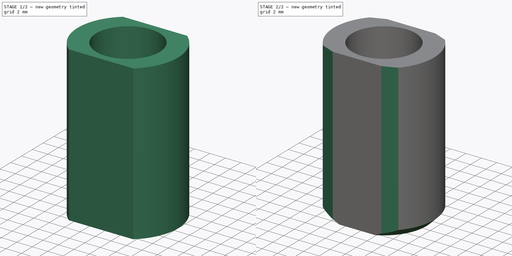
[diagram: build sequence overview — one tinted view per stage of 2, left to right]
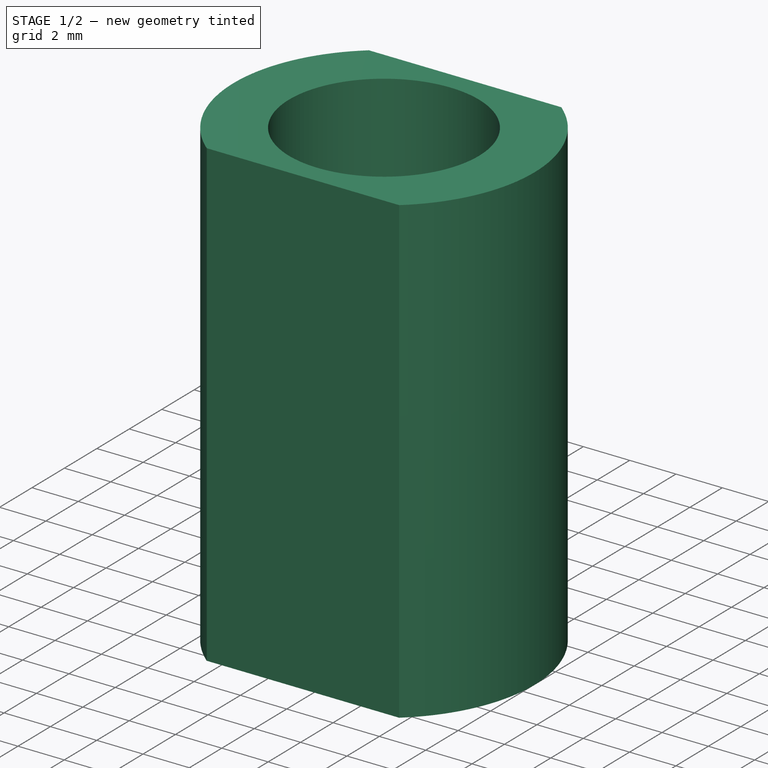
[diagram: stage 1 of 2 — iso view after this stage's code; geometry added in this stage tinted green]
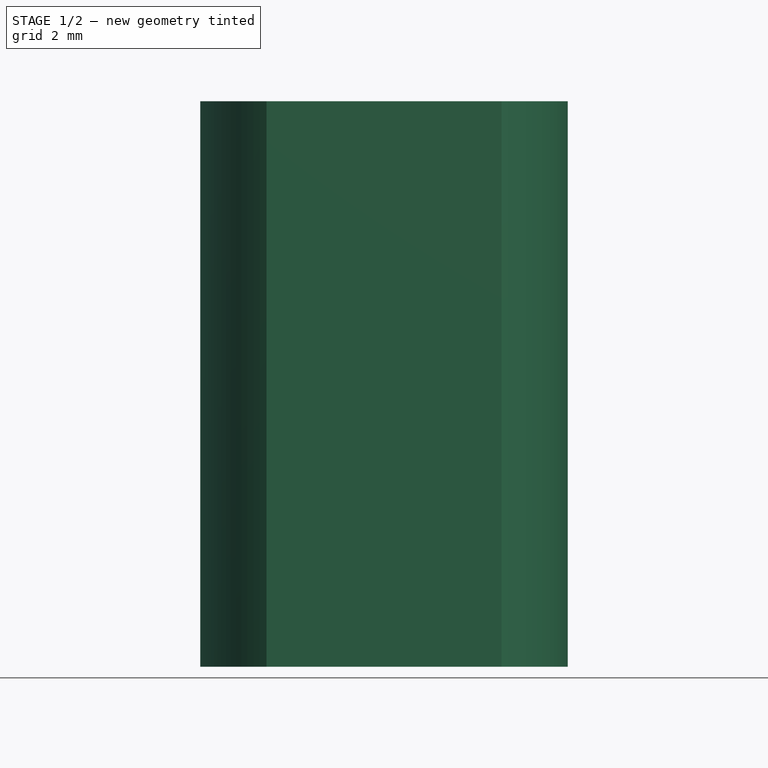
[diagram: stage 1 of 2 — front view after this stage's code; geometry added in this stage tinted green]
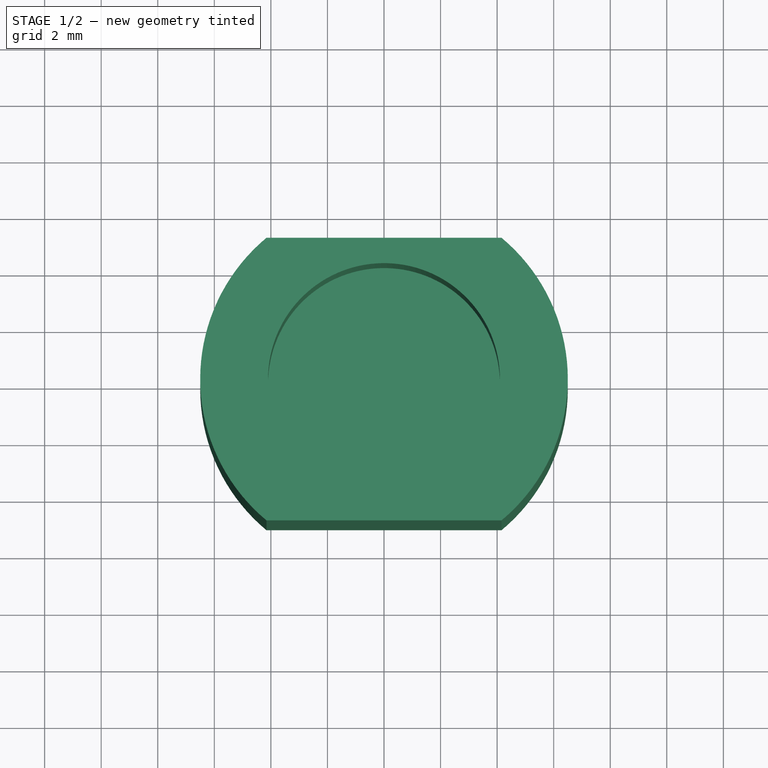
[diagram: stage 1 of 2 — top view after this stage's code; geometry added in this stage tinted green]
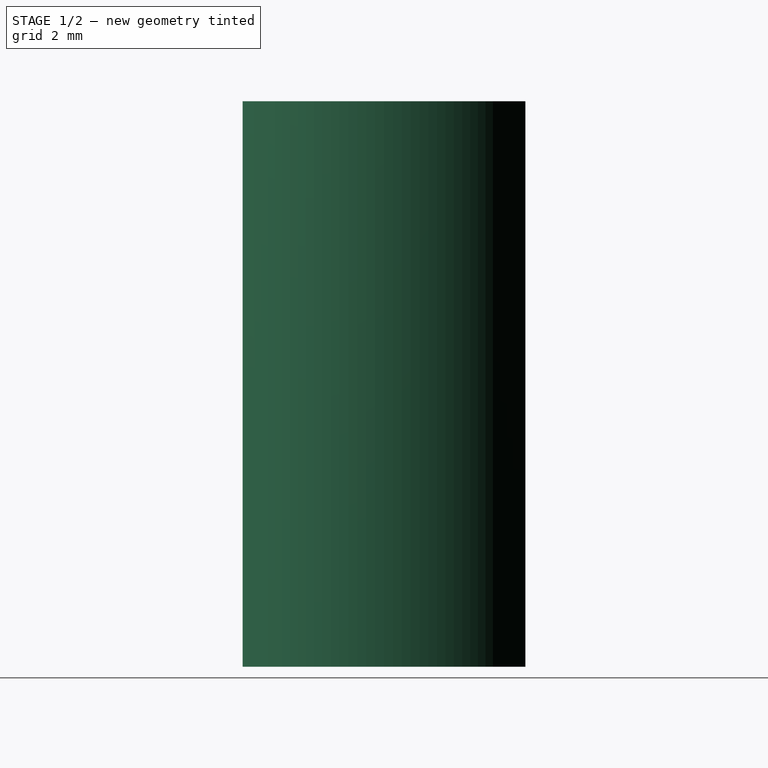
[diagram: stage 1 of 2 — right view after this stage's code; geometry added in this stage tinted green]
FCSTD DOCUMENT  (FreeCAD 1.0R38641 +468 (Git))
Label: 00forearm_tip
License: All rights reserved
LicenseURL: https://en.wikipedia.org/wiki/All_rights_reserved
objects: Sketcher::SketchObject×3, PartDesign::Pad×1, PartDesign::Pocket×1, PartDesign::Chamfer×1, PartDesign::Hole×1, PartDesign::Body×1
note: 19 computed .brp shape members not serialized (recipe doc carries the construction recipe); baked Part::Feature solids carry a one-line shape summary decoded from their .brp

FEATURE [Sketcher::SketchObject] Sketch
  ArcFitTolerance = 1e-06
  AttachmentSupport = -> [XY_Plane]
  FullyConstrained = false
  MakeInternals = false
  MapMode = 5
  sketch-geometry (10):
    g0: Circle [constr] CenterX=0 CenterY=0 CenterZ=0 NormalX=0 NormalY=0 NormalZ=1 AngleXU=0 Radius=6.5
    g1: LineSegment [constr] StartX=6.5816 StartY=-5 StartZ=0 EndX=6.5816 EndY=5 EndZ=0
    g2: LineSegment [constr] StartX=6.5816 StartY=5 StartZ=0 EndX=-6.5816 EndY=5 EndZ=0
    g3: LineSegment [constr] StartX=-6.5816 StartY=5 StartZ=0 EndX=-6.5816 EndY=-5 EndZ=0
    g4: LineSegment [constr] StartX=-6.5816 StartY=-5 StartZ=0 EndX=6.5816 EndY=-5 EndZ=0
    g5: GeomPoint [constr] X=0 Y=0 Z=0
    g6: ArcOfCircle CenterX=0 CenterY=0 CenterZ=0 NormalX=0 NormalY=0 NormalZ=1 AngleXU=0 Radius=6.5 StartAngle=5.40555 EndAngle=7.16082
    g7: ArcOfCircle CenterX=0 CenterY=0 CenterZ=0 NormalX=0 NormalY=0 NormalZ=1 AngleXU=0 Radius=6.5 StartAngle=2.26396 EndAngle=4.01923
    g8: LineSegment StartX=-4.15331 StartY=5 StartZ=0 EndX=4.15331 EndY=5 EndZ=0
    g9: LineSegment StartX=4.15331 StartY=-5 StartZ=0 EndX=-4.15331 EndY=-5 EndZ=0
  constraints (25):
    c: Coincident(g0,g-1)
    c: Diameter(g0) = 13
    c: Coincident(g1,g2)
    c: Coincident(g2,g3)
    c: Coincident(g3,g4)
    c: Coincident(g4,g1)
    c: Vertical(g1)
    c: Vertical(g3)
    c: Horizontal(g2)
    c: Horizontal(g4)
    c: Symmetric(g3,g1,g5)
    c: Coincident(g5,g0)
    c: DistanceY(g1,g1) = 10
    c: Coincident(g6,g0)
    c: PointOnObject(g6,g0)
    c: Coincident(g7,g0)
    c: PointOnObject(g7,g0)
    c: PointOnObject(g6,g2)
    c: PointOnObject(g7,g2)
    c: PointOnObject(g7,g4)
    c: PointOnObject(g6,g4)
    c: Coincident(g8,g7)
    c: Coincident(g8,g6)
    c: Coincident(g9,g6)
    c: Coincident(g9,g7)
FEATURE [PartDesign::Pad] Pad
  Direction = (0,0,1)
  Length = 20
  Length2 = 10
  Profile = -> Sketch
  ReferenceAxis = -> Sketch [N_Axis]
  Refine = true
  Suppressed = false
  Type = 0
FEATURE [Sketcher::SketchObject] Sketch001
  ArcFitTolerance = 1e-06
  FullyConstrained = true
  MakeInternals = false
  MapMode = 5
  Placement = pos=(0,0,20) rot=(0,0,1;0rad)
  sketch-geometry (1):
    g0: Circle CenterX=0 CenterY=0 CenterZ=0 NormalX=0 NormalY=0 NormalZ=1 AngleXU=0 Radius=4.1
  constraints (2):
    c: Coincident(g0,g-1)
    c: Diameter(g0) = 8.2
FEATURE [PartDesign::Pocket] Pocket
  BaseFeature = -> Pad
  Direction = (0,0,-1)
  Length = 10
  Length2 = 5
  Profile = -> Sketch001
  ReferenceAxis = -> Sketch001 [N_Axis]
  Refine = true
  Suppressed = false
  Type = 0
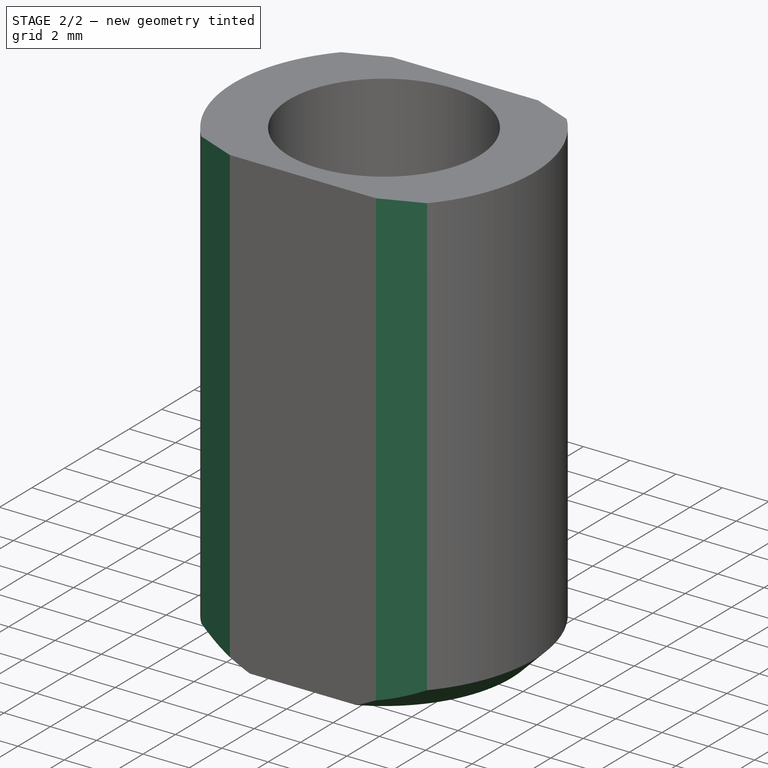
[diagram: stage 2 of 2 — iso view after this stage's code; geometry added in this stage tinted green]
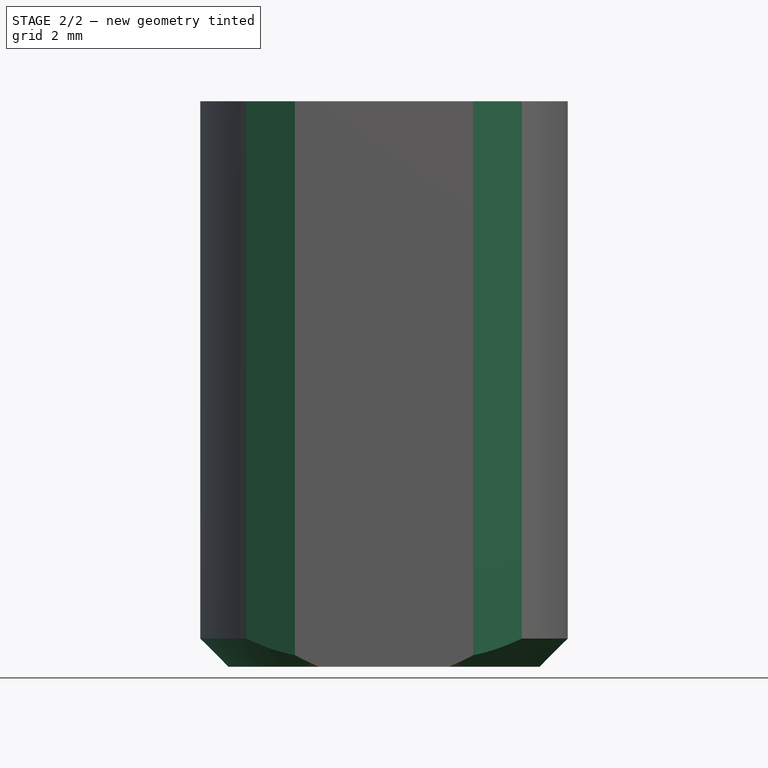
[diagram: stage 2 of 2 — front view after this stage's code; geometry added in this stage tinted green]
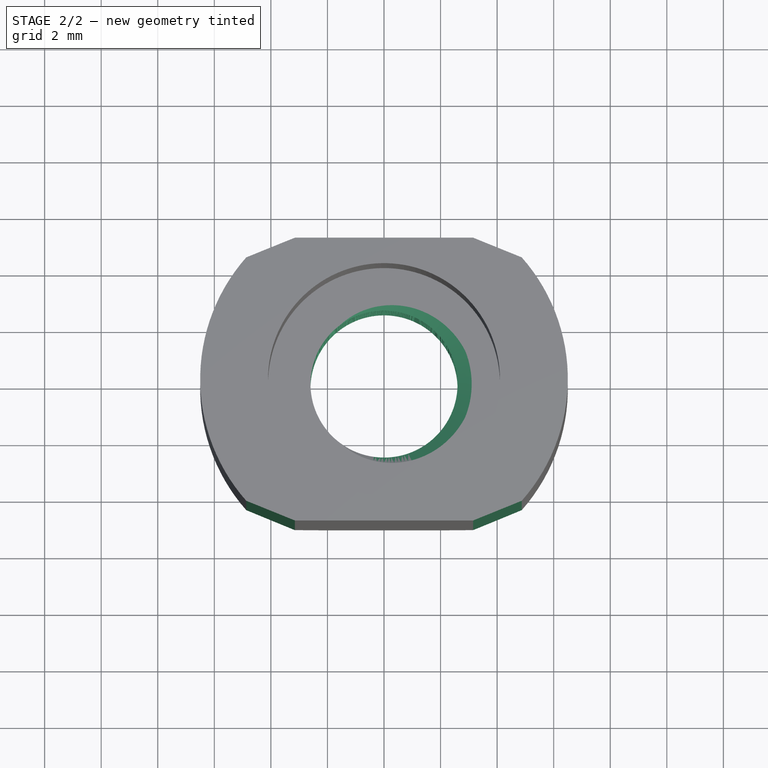
[diagram: stage 2 of 2 — top view after this stage's code; geometry added in this stage tinted green]
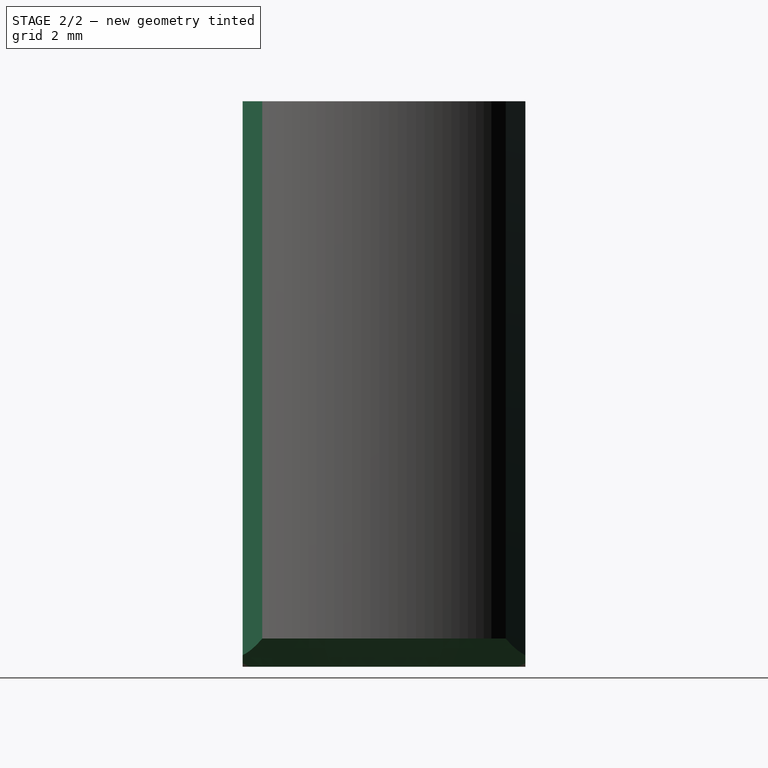
[diagram: stage 2 of 2 — right view after this stage's code; geometry added in this stage tinted green]
FEATURE [PartDesign::Chamfer] Chamfer
  Angle = 45
  Base = -> Pocket [Edge11,Edge3,Edge2,Edge8,Edge5,Edge1]
  BaseFeature = -> Pocket
  ChamferType = 0
  FlipDirection = false
  Refine = true
  Size = 1
  Size2 = 1
  SupportTransform = false
  Suppressed = false
  UseAllEdges = false
FEATURE [Sketcher::SketchObject] Sketch002
  ArcFitTolerance = 1e-06
  AttachmentSupport = -> [Chamfer]
  FullyConstrained = false
  MakeInternals = false
  MapMode = 5
  Placement = pos=(0,0,0) rot=(1,0,0;3.14159rad)
  sketch-geometry (1):
    g0: Circle CenterX=0 CenterY=0 CenterZ=0 NormalX=0 NormalY=0 NormalZ=1 AngleXU=0 Radius=1.09374
  constraints (1):
    c: Coincident(g0,g-1)
FEATURE [PartDesign::Hole] Hole
  BaseFeature = -> Chamfer
  CustomThreadClearance = 0.2
  Depth = 25
  DepthType = 0
  Diameter = 5.2
  DrillForDepth = false
  DrillPoint = 1
  DrillPointAngle = 118
  HoleCutCountersinkAngle = 90
  HoleCutCustomValues = false
  HoleCutDepth = 0
  HoleCutDiameter = 6.1
  HoleCutType = 0
  ModelThread = true
  Profile = -> Sketch002
  Refine = true
  Suppressed = false
  Tapered = false
  TaperedAngle = 90
  ThreadClass = 8
  ThreadDepth = 25
  ThreadDepthType = 0
  ThreadDirection = 1
  ThreadFit = 0
  ThreadSize = 14
  ThreadType = 1
  Threaded = true
  UseCustomThreadClearance = true
FEATURE [PartDesign::Body] Body
  AllowCompound = false
  Group = -> [Sketch,Pad,Sketch001,Pocket,Chamfer,Sketch002,Hole]
  Origin = -> Origin
  Tip = -> Hole
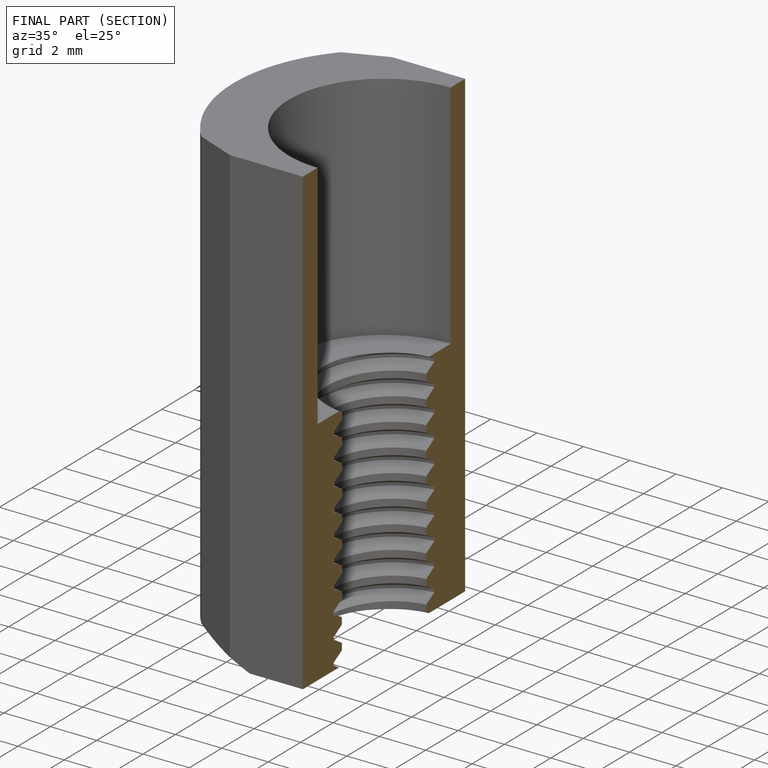
[diagram: finished part — half-section view (interior)]
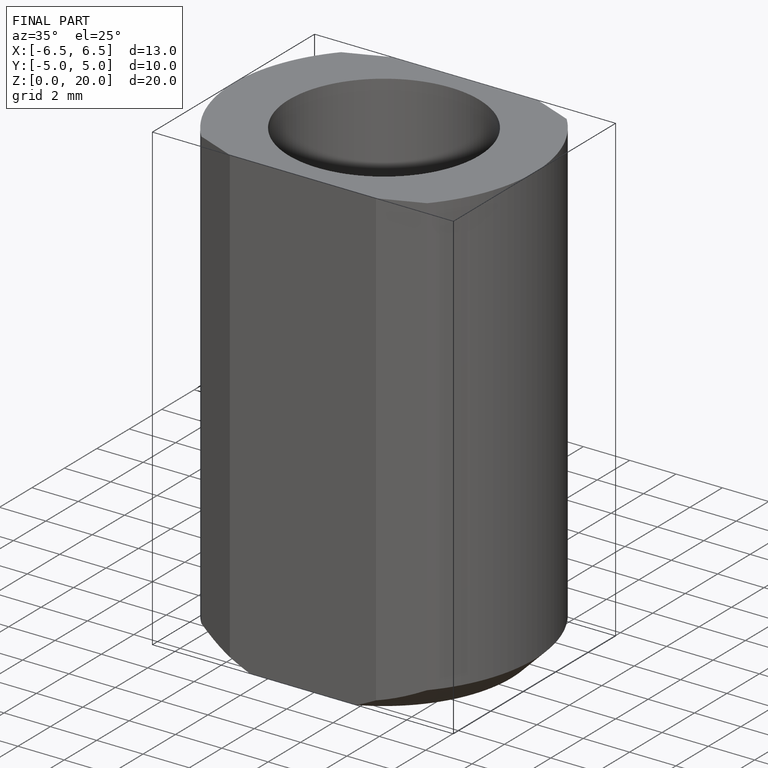
[diagram: finished part — iso view with bounding-box wireframe]
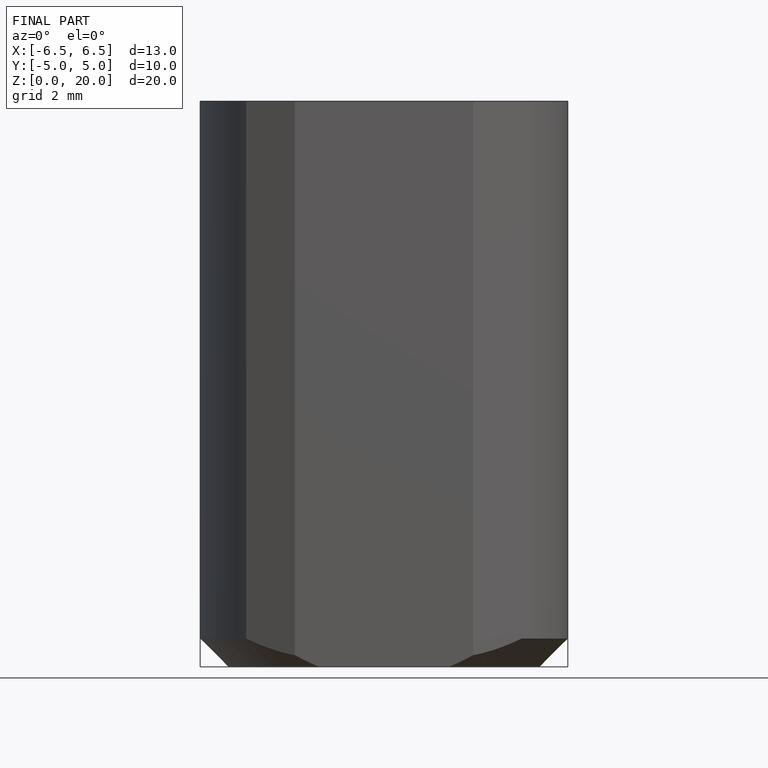
[diagram: finished part — front view with bounding-box wireframe]
